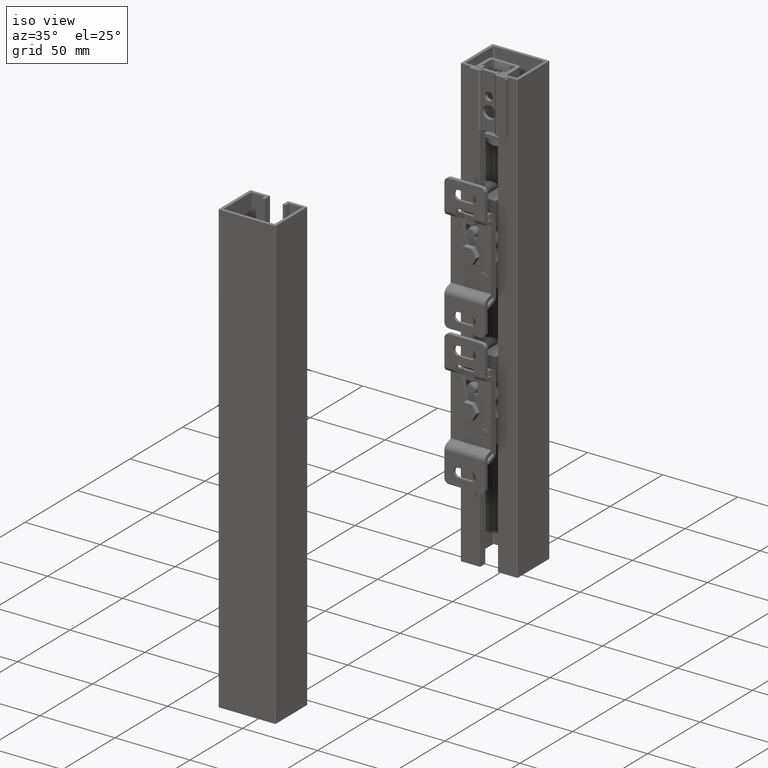
[diagram: clean part render]
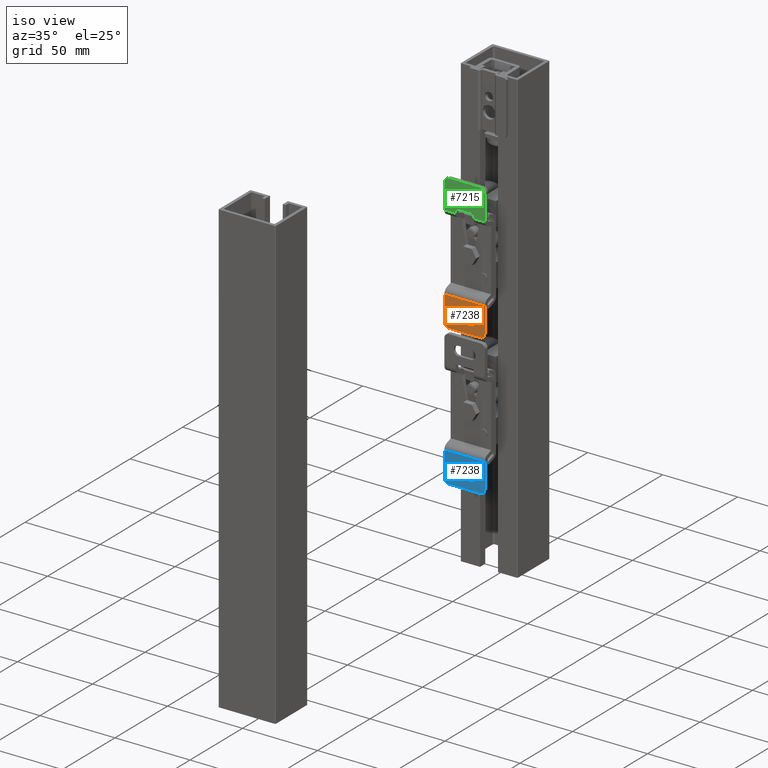
[diagram: same view with three faces highlighted in distinct colors, each labeled with its STEP entity id]
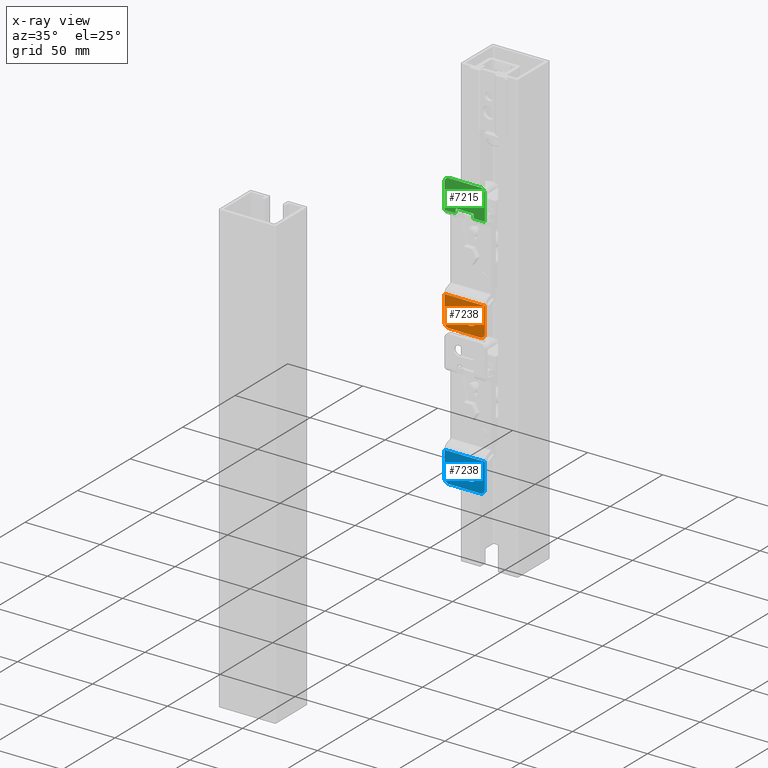
[diagram: x-ray of the same camera — body ghosted, the three highlighted faces saturated]
A machine part, iso view with three faces highlighted in distinct colors.
The next image is the same camera in x-ray (body ghosted, the three faces saturated) — at least one of them is partly hidden behind the body in this view.
Their STEP definitions:

[orange] entity #7238 — the highlighted planar face has unit normal (-0, -1, 0).
#173=FACE_BOUND('',#1242,.T.);
#401=PLANE('',#7842);
#730=FACE_OUTER_BOUND('',#1241,.T.);
#1241=EDGE_LOOP('',(#5732,#5733,#5734,#5735,#5736,#5737));
#1242=EDGE_LOOP('',(#5738,#5739,#5740,#5741));
#1683=LINE('',#11134,#2342);
#1767=LINE('',#11381,#2426);
#1775=LINE('',#11401,#2434);
#1780=LINE('',#11417,#2439);
#1782=LINE('',#11423,#2441);
#1788=LINE('',#11438,#2447);
#2342=VECTOR('',#8970,8.3);
#2426=VECTOR('',#9208,8.3);
#2434=VECTOR('',#9232,16.9023680796197);
#2439=VECTOR('',#9247,21.);
#2441=VECTOR('',#9255,27.);
#2447=VECTOR('',#9273,16.9023680796197);
#2933=CIRCLE('',#7742,3.1);
#2972=CIRCLE('',#7816,3.1);
#2977=CIRCLE('',#7829,3.);
#2978=CIRCLE('',#7832,3.);
#3359=VERTEX_POINT('',#11131);
#3360=VERTEX_POINT('',#11133);
#3361=VERTEX_POINT('',#11137);
#3446=VERTEX_POINT('',#11377);
#3449=VERTEX_POINT('',#11398);
#3450=VERTEX_POINT('',#11400);
#3454=VERTEX_POINT('',#11410);
#3455=VERTEX_POINT('',#11412);
#3456=VERTEX_POINT('',#11416);
#3457=VERTEX_POINT('',#11422);
#4136=EDGE_CURVE('',#3360,#3359,#1683,.T.);
#4139=EDGE_CURVE('',#3359,#3361,#2933,.T.);
#4258=EDGE_CURVE('',#3446,#3360,#2972,.T.);
#4260=EDGE_CURVE('',#3361,#3446,#1767,.T.);
#4270=EDGE_CURVE('',#3449,#3450,#1775,.T.);
#4276=EDGE_CURVE('',#3454,#3455,#2977,.T.);
#4278=EDGE_CURVE('',#3456,#3455,#1780,.T.);
#4280=EDGE_CURVE('',#3456,#3449,#2978,.T.);
#4281=EDGE_CURVE('',#3457,#3450,#1782,.T.);
#4289=EDGE_CURVE('',#3457,#3454,#1788,.T.);
#5732=ORIENTED_EDGE('',*,*,#4276,.F.);
#5733=ORIENTED_EDGE('',*,*,#4289,.F.);
#5734=ORIENTED_EDGE('',*,*,#4281,.T.);
#5735=ORIENTED_EDGE('',*,*,#4270,.F.);
#5736=ORIENTED_EDGE('',*,*,#4280,.F.);
#5737=ORIENTED_EDGE('',*,*,#4278,.T.);
#5738=ORIENTED_EDGE('',*,*,#4139,.T.);
#5739=ORIENTED_EDGE('',*,*,#4260,.T.);
#5740=ORIENTED_EDGE('',*,*,#4258,.T.);
#5741=ORIENTED_EDGE('',*,*,#4136,.T.);
#7238=ADVANCED_FACE('',(#730,#173),#401,.T.);
#7742=AXIS2_PLACEMENT_3D('',#11139,#8975,#8976);
#7816=AXIS2_PLACEMENT_3D('',#11378,#9203,#9204);
#7829=AXIS2_PLACEMENT_3D('',#11413,#9242,#9243);
#7832=AXIS2_PLACEMENT_3D('',#11420,#9251,#9252);
#7842=AXIS2_PLACEMENT_3D('',#11444,#9279,#9280);
#8970=DIRECTION('',(-8.02570861174812E-16,-1.47429875434E-31,-1.));
#8975=DIRECTION('center_axis',(-1.83697019872103E-16,1.,0.));
#8976=DIRECTION('ref_axis',(1.,0.,-7.16272919113005E-16));
#9203=DIRECTION('center_axis',(-1.83697019872103E-16,1.,0.));
#9204=DIRECTION('ref_axis',(-1.,0.,7.16272919113004E-16));
#9208=DIRECTION('',(0.,0.,1.));
#9232=DIRECTION('',(1.,1.83697019872103E-16,0.));
#9242=DIRECTION('center_axis',(-1.83697019872103E-16,1.,0.));
#9243=DIRECTION('ref_axis',(-0.707106781186546,0.,-0.707106781186549));
#9247=DIRECTION('',(0.,0.,-1.));
#9251=DIRECTION('center_axis',(-1.83697019872103E-16,1.,0.));
#9252=DIRECTION('ref_axis',(-0.707106781186546,0.,0.707106781186549));
#9255=DIRECTION('',(0.,0.,1.));
#9273=DIRECTION('',(-1.,-1.83697019872103E-16,0.));
#9279=DIRECTION('center_axis',(1.83697019872103E-16,-1.,0.));
#9280=DIRECTION('ref_axis',(1.,1.83697019872103E-16,0.));
#11131=CARTESIAN_POINT('',(-33.65,2.77555756156289E-15,-4.15));
#11133=CARTESIAN_POINT('',(-33.65,2.77555756156289E-15,4.15));
#11134=CARTESIAN_POINT('',(-33.65,2.4980018054066E-15,-2.07500000000001));
#11137=CARTESIAN_POINT('',(-39.85,1.66533453693773E-15,-4.15));
#11139=CARTESIAN_POINT('Origin',(-36.75,5.55111512312578E-16,-4.15));
#11377=CARTESIAN_POINT('',(-39.85,1.66533453693773E-15,4.15));
#11378=CARTESIAN_POINT('Origin',(-36.75,5.55111512312578E-16,4.15));
#11381=CARTESIAN_POINT('',(-39.85,1.38777878078145E-15,2.075));
#11398=CARTESIAN_POINT('',(-42.25,9.01325915344512E-16,13.5));
#11400=CARTESIAN_POINT('',(-25.3476319203803,3.33066907387547E-15,13.5));
#11401=CARTESIAN_POINT('',(-45.25,3.50234855728204E-16,13.5));
#11410=CARTESIAN_POINT('',(-42.25,9.01325915344512E-16,-13.5));
#11412=CARTESIAN_POINT('',(-45.25,3.50234855728204E-16,-10.5));
#11413=CARTESIAN_POINT('Origin',(-42.25,2.77555756156289E-16,-10.5));
#11416=CARTESIAN_POINT('',(-45.25,3.50234855728204E-16,10.5));
#11417=CARTESIAN_POINT('',(-45.25,3.50234855728204E-16,0.));
#11420=CARTESIAN_POINT('Origin',(-42.25,2.77555756156289E-16,10.5));
#11422=CARTESIAN_POINT('',(-25.3476319203803,3.33066907387547E-15,-13.5));
#11423=CARTESIAN_POINT('',(-25.3476319203803,3.88578058618805E-15,0.));
#11438=CARTESIAN_POINT('',(-45.25,3.50234855728204E-16,-13.5));
#11444=CARTESIAN_POINT('Origin',(-45.25,3.50234855728204E-16,0.));

[blue] entity #7238 — the highlighted planar face has unit normal (-0, -1, 0).
#173=FACE_BOUND('',#1242,.T.);
#401=PLANE('',#7842);
#730=FACE_OUTER_BOUND('',#1241,.T.);
#1241=EDGE_LOOP('',(#5732,#5733,#5734,#5735,#5736,#5737));
#1242=EDGE_LOOP('',(#5738,#5739,#5740,#5741));
#1683=LINE('',#11134,#2342);
#1767=LINE('',#11381,#2426);
#1775=LINE('',#11401,#2434);
#1780=LINE('',#11417,#2439);
#1782=LINE('',#11423,#2441);
#1788=LINE('',#11438,#2447);
#2342=VECTOR('',#8970,8.3);
#2426=VECTOR('',#9208,8.3);
#2434=VECTOR('',#9232,16.9023680796197);
#2439=VECTOR('',#9247,21.);
#2441=VECTOR('',#9255,27.);
#2447=VECTOR('',#9273,16.9023680796197);
#2933=CIRCLE('',#7742,3.1);
#2972=CIRCLE('',#7816,3.1);
#2977=CIRCLE('',#7829,3.);
#2978=CIRCLE('',#7832,3.);
#3359=VERTEX_POINT('',#11131);
#3360=VERTEX_POINT('',#11133);
#3361=VERTEX_POINT('',#11137);
#3446=VERTEX_POINT('',#11377);
#3449=VERTEX_POINT('',#11398);
#3450=VERTEX_POINT('',#11400);
#3454=VERTEX_POINT('',#11410);
#3455=VERTEX_POINT('',#11412);
#3456=VERTEX_POINT('',#11416);
#3457=VERTEX_POINT('',#11422);
#4136=EDGE_CURVE('',#3360,#3359,#1683,.T.);
#4139=EDGE_CURVE('',#3359,#3361,#2933,.T.);
#4258=EDGE_CURVE('',#3446,#3360,#2972,.T.);
#4260=EDGE_CURVE('',#3361,#3446,#1767,.T.);
#4270=EDGE_CURVE('',#3449,#3450,#1775,.T.);
#4276=EDGE_CURVE('',#3454,#3455,#2977,.T.);
#4278=EDGE_CURVE('',#3456,#3455,#1780,.T.);
#4280=EDGE_CURVE('',#3456,#3449,#2978,.T.);
#4281=EDGE_CURVE('',#3457,#3450,#1782,.T.);
#4289=EDGE_CURVE('',#3457,#3454,#1788,.T.);
#5732=ORIENTED_EDGE('',*,*,#4276,.F.);
#5733=ORIENTED_EDGE('',*,*,#4289,.F.);
#5734=ORIENTED_EDGE('',*,*,#4281,.T.);
#5735=ORIENTED_EDGE('',*,*,#4270,.F.);
#5736=ORIENTED_EDGE('',*,*,#4280,.F.);
#5737=ORIENTED_EDGE('',*,*,#4278,.T.);
#5738=ORIENTED_EDGE('',*,*,#4139,.T.);
#5739=ORIENTED_EDGE('',*,*,#4260,.T.);
#5740=ORIENTED_EDGE('',*,*,#4258,.T.);
#5741=ORIENTED_EDGE('',*,*,#4136,.T.);
#7238=ADVANCED_FACE('',(#730,#173),#401,.T.);
#7742=AXIS2_PLACEMENT_3D('',#11139,#8975,#8976);
#7816=AXIS2_PLACEMENT_3D('',#11378,#9203,#9204);
#7829=AXIS2_PLACEMENT_3D('',#11413,#9242,#9243);
#7832=AXIS2_PLACEMENT_3D('',#11420,#9251,#9252);
#7842=AXIS2_PLACEMENT_3D('',#11444,#9279,#9280);
#8970=DIRECTION('',(-8.02570861174812E-16,-1.47429875434E-31,-1.));
#8975=DIRECTION('center_axis',(-1.83697019872103E-16,1.,0.));
#8976=DIRECTION('ref_axis',(1.,0.,-7.16272919113005E-16));
#9203=DIRECTION('center_axis',(-1.83697019872103E-16,1.,0.));
#9204=DIRECTION('ref_axis',(-1.,0.,7.16272919113004E-16));
#9208=DIRECTION('',(0.,0.,1.));
#9232=DIRECTION('',(1.,1.83697019872103E-16,0.));
#9242=DIRECTION('center_axis',(-1.83697019872103E-16,1.,0.));
#9243=DIRECTION('ref_axis',(-0.707106781186546,0.,-0.707106781186549));
#9247=DIRECTION('',(0.,0.,-1.));
#9251=DIRECTION('center_axis',(-1.83697019872103E-16,1.,0.));
#9252=DIRECTION('ref_axis',(-0.707106781186546,0.,0.707106781186549));
#9255=DIRECTION('',(0.,0.,1.));
#9273=DIRECTION('',(-1.,-1.83697019872103E-16,0.));
#9279=DIRECTION('center_axis',(1.83697019872103E-16,-1.,0.));
#9280=DIRECTION('ref_axis',(1.,1.83697019872103E-16,0.));
#11131=CARTESIAN_POINT('',(-33.65,2.77555756156289E-15,-4.15));
#11133=CARTESIAN_POINT('',(-33.65,2.77555756156289E-15,4.15));
#11134=CARTESIAN_POINT('',(-33.65,2.4980018054066E-15,-2.07500000000001));
#11137=CARTESIAN_POINT('',(-39.85,1.66533453693773E-15,-4.15));
#11139=CARTESIAN_POINT('Origin',(-36.75,5.55111512312578E-16,-4.15));
#11377=CARTESIAN_POINT('',(-39.85,1.66533453693773E-15,4.15));
#11378=CARTESIAN_POINT('Origin',(-36.75,5.55111512312578E-16,4.15));
#11381=CARTESIAN_POINT('',(-39.85,1.38777878078145E-15,2.075));
#11398=CARTESIAN_POINT('',(-42.25,9.01325915344512E-16,13.5));
#11400=CARTESIAN_POINT('',(-25.3476319203803,3.33066907387547E-15,13.5));
#11401=CARTESIAN_POINT('',(-45.25,3.50234855728204E-16,13.5));
#11410=CARTESIAN_POINT('',(-42.25,9.01325915344512E-16,-13.5));
#11412=CARTESIAN_POINT('',(-45.25,3.50234855728204E-16,-10.5));
#11413=CARTESIAN_POINT('Origin',(-42.25,2.77555756156289E-16,-10.5));
#11416=CARTESIAN_POINT('',(-45.25,3.50234855728204E-16,10.5));
#11417=CARTESIAN_POINT('',(-45.25,3.50234855728204E-16,0.));
#11420=CARTESIAN_POINT('Origin',(-42.25,2.77555756156289E-16,10.5));
#11422=CARTESIAN_POINT('',(-25.3476319203803,3.33066907387547E-15,-13.5));
#11423=CARTESIAN_POINT('',(-25.3476319203803,3.88578058618805E-15,0.));
#11438=CARTESIAN_POINT('',(-45.25,3.50234855728204E-16,-13.5));
#11444=CARTESIAN_POINT('Origin',(-45.25,3.50234855728204E-16,0.));

[green] entity #7215 — the highlighted planar face has unit normal (-0, -1, 0).
#171=FACE_BOUND('',#1217,.T.);
#390=PLANE('',#7801);
#707=FACE_OUTER_BOUND('',#1216,.T.);
#1216=EDGE_LOOP('',(#5585,#5586,#5587,#5588,#5589,#5590,#5591,#5592,#5593,
#5594));
#1217=EDGE_LOOP('',(#5595,#5596,#5597,#5598));
#1699=LINE('',#11181,#2358);
#1732=LINE('',#11274,#2391);
#1742=LINE('',#11304,#2401);
#1745=LINE('',#11312,#2404);
#1752=LINE('',#11337,#2411);
#1753=LINE('',#11339,#2412);
#1754=LINE('',#11343,#2413);
#1755=LINE('',#11347,#2414);
#1756=LINE('',#11348,#2415);
#1757=LINE('',#11351,#2416);
#2358=VECTOR('',#9014,8.3);
#2391=VECTOR('',#9091,2.90236807961968);
#2401=VECTOR('',#9119,2.90236807961968);
#2404=VECTOR('',#9128,12.);
#2411=VECTOR('',#9161,7.5);
#2412=VECTOR('',#9162,16.9023680796197);
#2413=VECTOR('',#9165,21.);
#2414=VECTOR('',#9168,16.9023680796197);
#2415=VECTOR('',#9169,7.5);
#2416=VECTOR('',#9172,8.3);
#2940=CIRCLE('',#7756,3.1);
#2965=CIRCLE('',#7802,3.);
#2966=CIRCLE('',#7803,3.);
#2967=CIRCLE('',#7804,3.1);
#3376=VERTEX_POINT('',#11178);
#3377=VERTEX_POINT('',#11180);
#3378=VERTEX_POINT('',#11184);
#3414=VERTEX_POINT('',#11271);
#3415=VERTEX_POINT('',#11273);
#3425=VERTEX_POINT('',#11301);
#3426=VERTEX_POINT('',#11303);
#3433=VERTEX_POINT('',#11336);
#3434=VERTEX_POINT('',#11338);
#3435=VERTEX_POINT('',#11340);
#3436=VERTEX_POINT('',#11342);
#3437=VERTEX_POINT('',#11344);
#3438=VERTEX_POINT('',#11346);
#3439=VERTEX_POINT('',#11349);
#4159=EDGE_CURVE('',#3377,#3376,#1699,.T.);
#4162=EDGE_CURVE('',#3376,#3378,#2940,.T.);
#4205=EDGE_CURVE('',#3415,#3414,#1732,.T.);
#4220=EDGE_CURVE('',#3426,#3425,#1742,.T.);
#4225=EDGE_CURVE('',#3414,#3426,#1745,.T.);
#4237=EDGE_CURVE('',#3425,#3433,#1752,.T.);
#4238=EDGE_CURVE('',#3434,#3433,#1753,.T.);
#4239=EDGE_CURVE('',#3435,#3434,#2965,.T.);
#4240=EDGE_CURVE('',#3435,#3436,#1754,.T.);
#4241=EDGE_CURVE('',#3437,#3436,#2966,.T.);
#4242=EDGE_CURVE('',#3438,#3437,#1755,.T.);
#4243=EDGE_CURVE('',#3438,#3415,#1756,.T.);
#4244=EDGE_CURVE('',#3439,#3377,#2967,.T.);
#4245=EDGE_CURVE('',#3378,#3439,#1757,.T.);
#5585=ORIENTED_EDGE('',*,*,#4205,.T.);
#5586=ORIENTED_EDGE('',*,*,#4225,.T.);
#5587=ORIENTED_EDGE('',*,*,#4220,.T.);
#5588=ORIENTED_EDGE('',*,*,#4237,.T.);
#5589=ORIENTED_EDGE('',*,*,#4238,.F.);
#5590=ORIENTED_EDGE('',*,*,#4239,.F.);
#5591=ORIENTED_EDGE('',*,*,#4240,.T.);
#5592=ORIENTED_EDGE('',*,*,#4241,.F.);
#5593=ORIENTED_EDGE('',*,*,#4242,.F.);
#5594=ORIENTED_EDGE('',*,*,#4243,.T.);
#5595=ORIENTED_EDGE('',*,*,#4244,.T.);
#5596=ORIENTED_EDGE('',*,*,#4159,.T.);
#5597=ORIENTED_EDGE('',*,*,#4162,.T.);
#5598=ORIENTED_EDGE('',*,*,#4245,.T.);
#7215=ADVANCED_FACE('',(#707,#171),#390,.T.);
#7756=AXIS2_PLACEMENT_3D('',#11186,#9019,#9020);
#7801=AXIS2_PLACEMENT_3D('',#11335,#9159,#9160);
#7802=AXIS2_PLACEMENT_3D('',#11341,#9163,#9164);
#7803=AXIS2_PLACEMENT_3D('',#11345,#9166,#9167);
#7804=AXIS2_PLACEMENT_3D('',#11350,#9170,#9171);
#9014=DIRECTION('',(0.,0.,-1.));
#9019=DIRECTION('center_axis',(-1.83697019872103E-16,1.,0.));
#9020=DIRECTION('ref_axis',(-1.,0.,-7.16272919113005E-16));
#9091=DIRECTION('',(1.,1.83697019872103E-16,-2.4671622769448E-16));
#9119=DIRECTION('',(-1.,-1.83697019872103E-16,0.));
#9128=DIRECTION('',(0.,0.,-1.));
#9159=DIRECTION('center_axis',(1.83697019872103E-16,-1.,0.));
#9160=DIRECTION('ref_axis',(1.,1.83697019872103E-16,0.));
#9161=DIRECTION('',(0.,0.,-1.));
#9162=DIRECTION('',(-1.,-1.83697019872103E-16,0.));
#9163=DIRECTION('center_axis',(-1.83697019872103E-16,1.,0.));
#9164=DIRECTION('ref_axis',(0.707106781186546,0.,-0.707106781186549));
#9165=DIRECTION('',(0.,0.,1.));
#9166=DIRECTION('center_axis',(-1.83697019872103E-16,1.,0.));
#9167=DIRECTION('ref_axis',(0.707106781186546,0.,0.707106781186549));
#9168=DIRECTION('',(1.,1.83697019872103E-16,0.));
#9169=DIRECTION('',(0.,0.,-1.));
#9170=DIRECTION('center_axis',(-1.83697019872103E-16,1.,0.));
#9171=DIRECTION('ref_axis',(1.,0.,7.16272919113003E-16));
#9172=DIRECTION('',(0.,0.,1.));
#11178=CARTESIAN_POINT('',(39.85,1.60982338570648E-14,-4.15));
#11180=CARTESIAN_POINT('',(39.85,1.60982338570648E-14,4.15));
#11181=CARTESIAN_POINT('',(39.85,1.58206781009085E-14,-2.075));
#11184=CARTESIAN_POINT('',(33.65,1.49880108324396E-14,-4.15));
#11186=CARTESIAN_POINT('Origin',(36.75,5.55111512312578E-16,-4.15));
#11271=CARTESIAN_POINT('',(28.25,1.33226762955019E-14,6.));
#11273=CARTESIAN_POINT('',(25.3476319203803,1.33226762955019E-14,6.));
#11274=CARTESIAN_POINT('',(-8.50000000000001,7.21644966006352E-15,6.00000000000001));
#11301=CARTESIAN_POINT('',(25.3476319203803,1.33226762955019E-14,-6.));
#11303=CARTESIAN_POINT('',(28.25,1.33226762955019E-14,-6.));
#11304=CARTESIAN_POINT('',(-13.,6.66133814775094E-15,-6.));
#11312=CARTESIAN_POINT('',(28.25,1.38777878078145E-14,-3.));
#11335=CARTESIAN_POINT('Origin',(-45.25,3.50234855728204E-16,0.));
#11336=CARTESIAN_POINT('',(25.3476319203803,1.33226762955019E-14,-13.5));
#11337=CARTESIAN_POINT('',(25.3476319203803,1.33226762955019E-14,0.));
#11338=CARTESIAN_POINT('',(42.25,1.64237240945372E-14,-13.5));
#11339=CARTESIAN_POINT('',(-45.25,3.50234855728204E-16,-13.5));
#11340=CARTESIAN_POINT('',(45.25,1.69748151541535E-14,-10.5));
#11341=CARTESIAN_POINT('Origin',(42.25,4.16333634234434E-16,-10.5));
#11342=CARTESIAN_POINT('',(45.25,1.69748151541535E-14,10.5));
#11343=CARTESIAN_POINT('',(45.25,1.69748151541535E-14,0.));
#11344=CARTESIAN_POINT('',(42.25,1.64237240945372E-14,13.5));
#11345=CARTESIAN_POINT('Origin',(42.25,4.16333634234434E-16,10.5));
#11346=CARTESIAN_POINT('',(25.3476319203803,1.33226762955019E-14,13.5));
#11347=CARTESIAN_POINT('',(-45.25,3.50234855728204E-16,13.5));
#11348=CARTESIAN_POINT('',(25.3476319203803,1.33226762955019E-14,0.));
#11349=CARTESIAN_POINT('',(33.65,1.49880108324396E-14,4.15));
#11350=CARTESIAN_POINT('Origin',(36.75,5.55111512312578E-16,4.15));
#11351=CARTESIAN_POINT('',(33.65,1.47104550762833E-14,2.075));